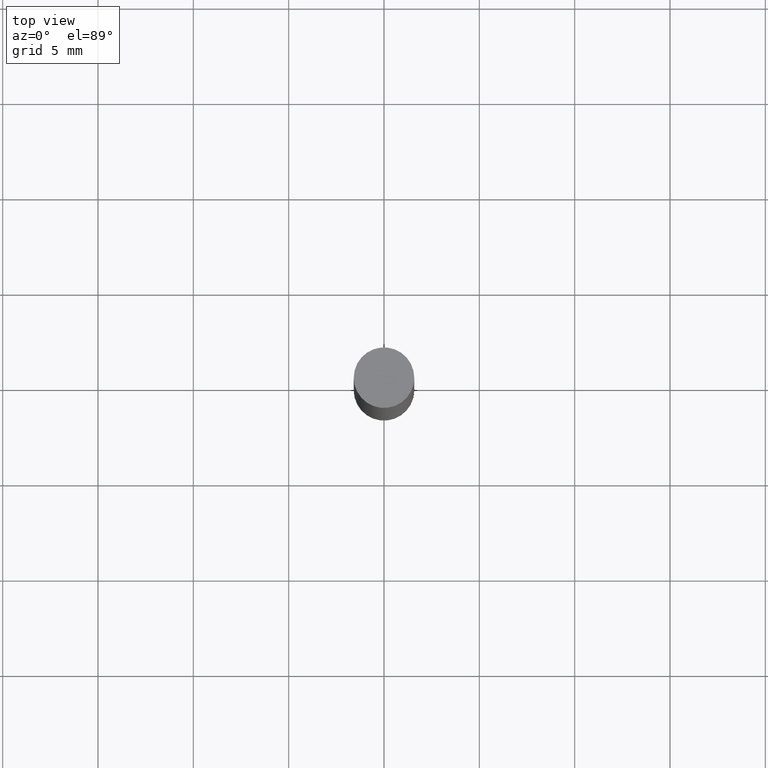
[diagram: clean part render]
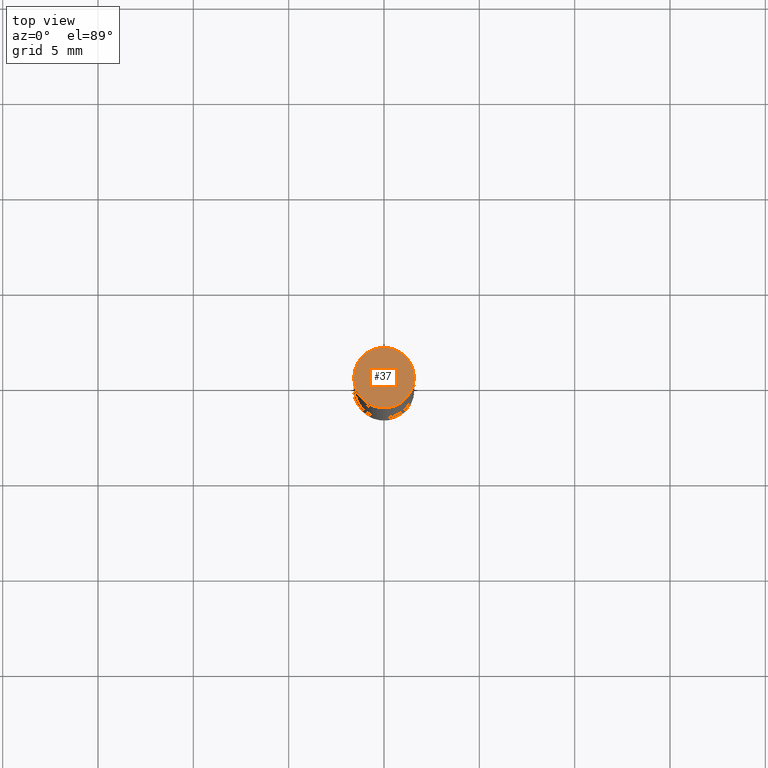
[diagram: same view with one face highlighted and labeled with its STEP entity id]
A machine part, top view. The second image highlights one B-rep face of the part: STEP entity #37.
In plain terms, the highlighted planar face has unit normal (0, 0, 1).
Its self-contained STEP definition (entity closure, byte-faithful):
#13 = DIRECTION ( 'NONE',  ( 1.000000000000000000, -6.982962677686267499E-15, 0.000000000000000000 ) ) ;
#29 = CARTESIAN_POINT ( 'NONE',  ( 3.668203209277704895E-29, 1.056804531456312920E-18, 2.731847993664263218E-16 ) ) ;
#37 = ADVANCED_FACE ( 'NONE', ( #123 ), #279, .T. ) ;
#75 = DIRECTION ( 'NONE',  ( 2.438088387897959769E-29, 3.492890411551753071E-15, 1.000000000000000000 ) ) ;
#91 = VERTEX_POINT ( 'NONE', #423 ) ;
#123 = FACE_OUTER_BOUND ( 'NONE', #195, .T. ) ;
#192 = ORIENTED_EDGE ( 'NONE', *, *, #590, .T. ) ;
#194 = DIRECTION ( 'NONE',  ( 1.000000000000000000, -6.982962677686267499E-15, 0.000000000000000000 ) ) ;
#195 = EDGE_LOOP ( 'NONE', ( #451, #192 ) ) ;
#274 = DIRECTION ( 'NONE',  ( 2.445468806185136597E-29, 3.492890411551752677E-15, 1.000000000000000000 ) ) ;
#279 = PLANE ( 'NONE',  #432 ) ;
#332 = EDGE_CURVE ( 'NONE', #365, #91, #516, .T. ) ;
#364 = CARTESIAN_POINT ( 'NONE',  ( 0.06250000000000001388, -4.353783628239354613E-16, 2.731847993664263218E-16 ) ) ;
#365 = VERTEX_POINT ( 'NONE', #364 ) ;
#423 = CARTESIAN_POINT ( 'NONE',  ( -0.06250000000000001388, -6.773372051792008208E-18, 2.731847993664278996E-16 ) ) ;
#432 = AXIS2_PLACEMENT_3D ( 'NONE', #546, #75, #489 ) ;
#451 = ORIENTED_EDGE ( 'NONE', *, *, #332, .T. ) ;
#489 = DIRECTION ( 'NONE',  ( -1.000000000000000000, 6.982962677686265922E-15, -9.839502134516470631E-33 ) ) ;
#516 = CIRCLE ( 'NONE', #649, 0.06250000000000001388 ) ;
#546 = CARTESIAN_POINT ( 'NONE',  ( 4.364351673554284500E-16, 0.06250000000000001388, 0.000000000000000000 ) ) ;
#569 = AXIS2_PLACEMENT_3D ( 'NONE', #647, #274, #13 ) ;
#590 = EDGE_CURVE ( 'NONE', #91, #365, #612, .T. ) ;
#612 = CIRCLE ( 'NONE', #569, 0.06250000000000001388 ) ;
#647 = CARTESIAN_POINT ( 'NONE',  ( 3.668203209277704895E-29, 1.056804531456312920E-18, 2.731847993664263218E-16 ) ) ;
#649 = AXIS2_PLACEMENT_3D ( 'NONE', #29, #660, #194 ) ;
#660 = DIRECTION ( 'NONE',  ( 2.445468806185136597E-29, 3.492890411551752677E-15, 1.000000000000000000 ) ) ;